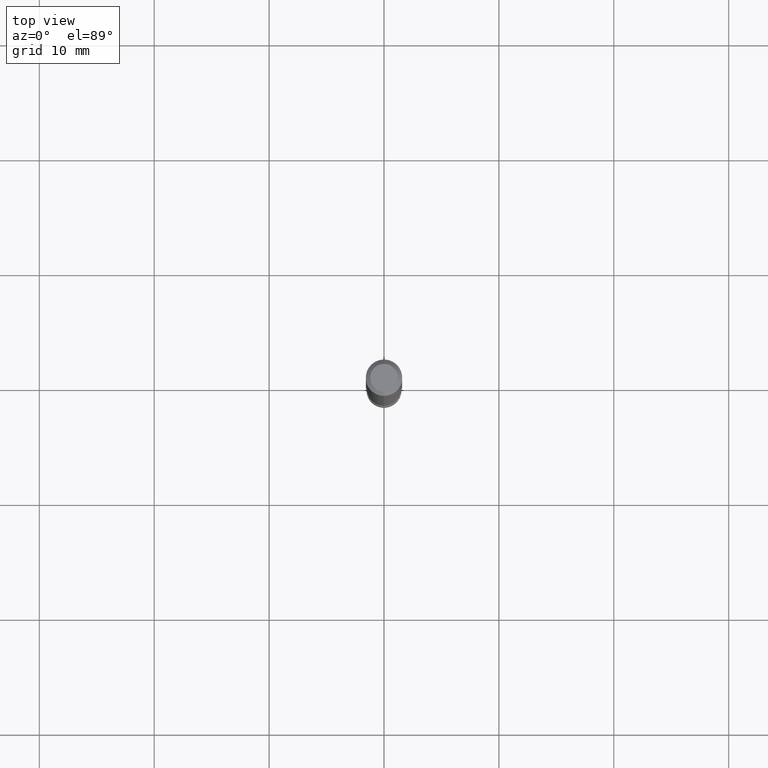
[diagram: clean part render]
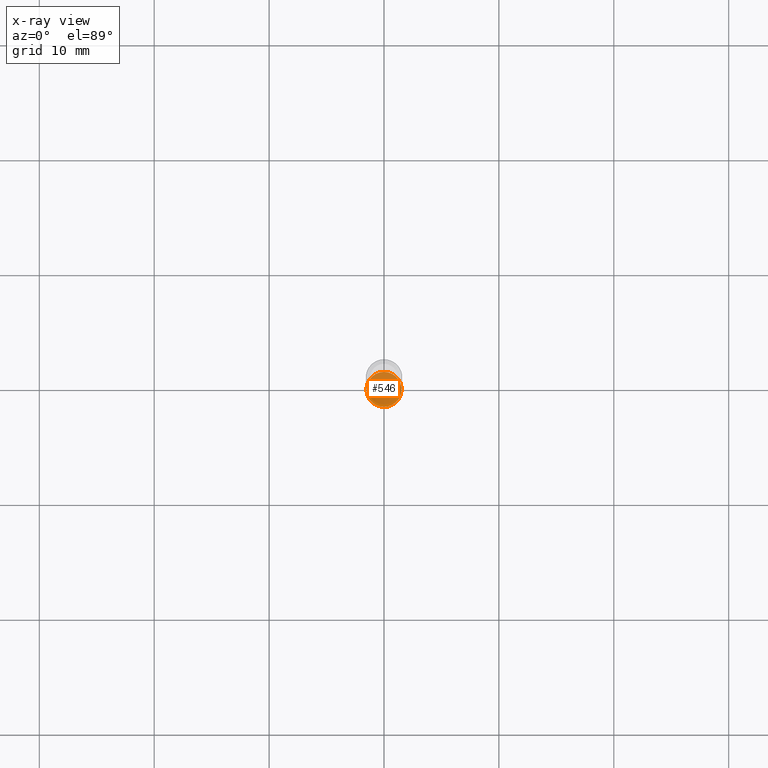
[diagram: x-ray — body ghosted, one internal face saturated and labeled with its STEP entity id]
A machine part, top view, then the same camera in x-ray: the body is ghosted and one INTERNAL B-rep face — a face not visible from any outside direction — is saturated and labeled: STEP entity #546.
In plain terms, the highlighted planar face has unit normal (-0, 0, 1).
Its self-contained STEP definition (entity closure, byte-faithful):
#40 = DIRECTION ( 'NONE',  ( -2.445374119236681714E-29, 3.491616935942579411E-15, 1.000000000000000000 ) ) ;
#48 = DIRECTION ( 'NONE',  ( -2.445374119236681714E-29, 3.491616935942579411E-15, 1.000000000000000000 ) ) ;
#52 = CIRCLE ( 'NONE', #458, 0.05999999999999999778 ) ;
#55 = FACE_OUTER_BOUND ( 'NONE', #385, .T. ) ;
#142 = CARTESIAN_POINT ( 'NONE',  ( 4.189777606612326922E-16, 0.05999999999999190009, -2.320000000000000284 ) ) ;
#155 = VERTEX_POINT ( 'NONE', #454 ) ;
#171 = ORIENTED_EDGE ( 'NONE', *, *, #400, .F. ) ;
#181 = DIRECTION ( 'NONE',  ( -6.982962677686265922E-15, -1.000000000000000000, 4.553079989440439092E-15 ) ) ;
#223 = EDGE_CURVE ( 'NONE', #155, #390, #52, .T. ) ;
#228 = DIRECTION ( 'NONE',  ( -6.982962677686265922E-15, -1.000000000000000000, 3.491616935942579411E-15 ) ) ;
#245 = AXIS2_PLACEMENT_3D ( 'NONE', #446, #40, #181 ) ;
#317 = DIRECTION ( 'NONE',  ( -2.445374119236681433E-29, 3.491616935942579411E-15, 1.000000000000000000 ) ) ;
#319 = CARTESIAN_POINT ( 'NONE',  ( 5.673267956629101509E-29, -8.100551291386784361E-15, -2.320000000000000284 ) ) ;
#354 = AXIS2_PLACEMENT_3D ( 'NONE', #142, #317, #228 ) ;
#368 = PLANE ( 'NONE',  #354 ) ;
#385 = EDGE_LOOP ( 'NONE', ( #433, #171 ) ) ;
#390 = VERTEX_POINT ( 'NONE', #442 ) ;
#400 = EDGE_CURVE ( 'NONE', #390, #155, #506, .T. ) ;
#403 = DIRECTION ( 'NONE',  ( -6.982962677686265922E-15, -1.000000000000000000, 4.553079989440439092E-15 ) ) ;
#433 = ORIENTED_EDGE ( 'NONE', *, *, #223, .F. ) ;
#442 = CARTESIAN_POINT ( 'NONE',  ( 4.263256414561168444E-16, 0.05999999999999190703, -2.320000000000000284 ) ) ;
#446 = CARTESIAN_POINT ( 'NONE',  ( 5.673267956629101509E-29, -8.100551291386784361E-15, -2.320000000000000284 ) ) ;
#454 = CARTESIAN_POINT ( 'NONE',  ( -4.189777606611192934E-16, -0.06000000000000810935, -2.319999999999999840 ) ) ;
#458 = AXIS2_PLACEMENT_3D ( 'NONE', #319, #48, #403 ) ;
#506 = CIRCLE ( 'NONE', #245, 0.05999999999999999778 ) ;
#546 = ADVANCED_FACE ( 'NONE', ( #55 ), #368, .F. ) ;